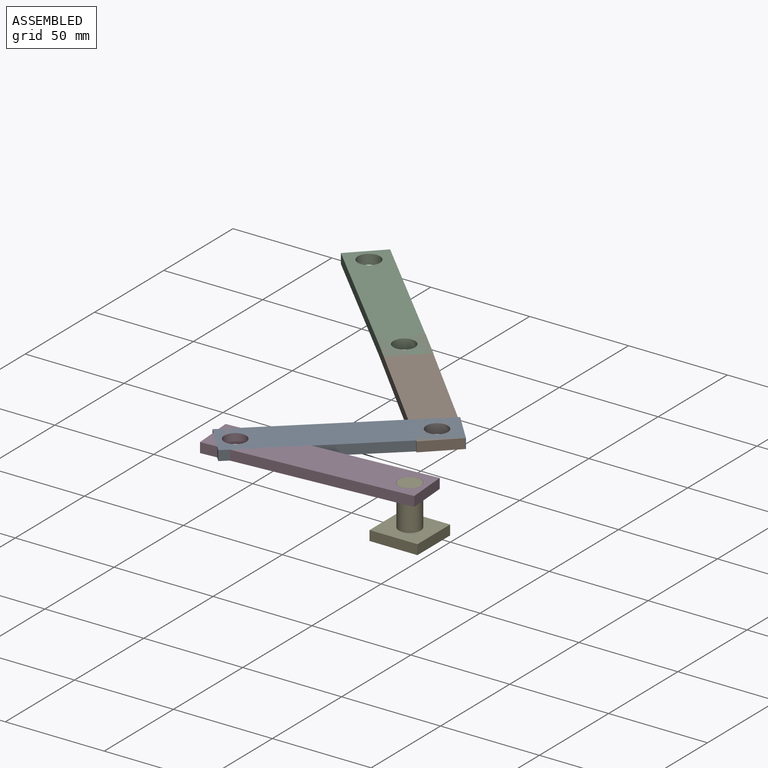
[diagram: assembled view]
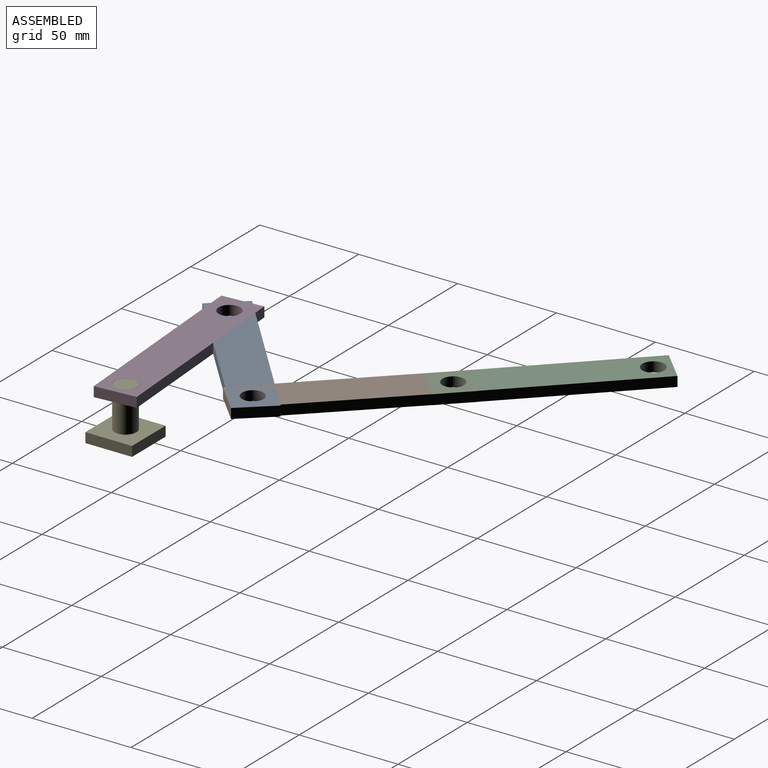
[diagram: assembled view, second angle]
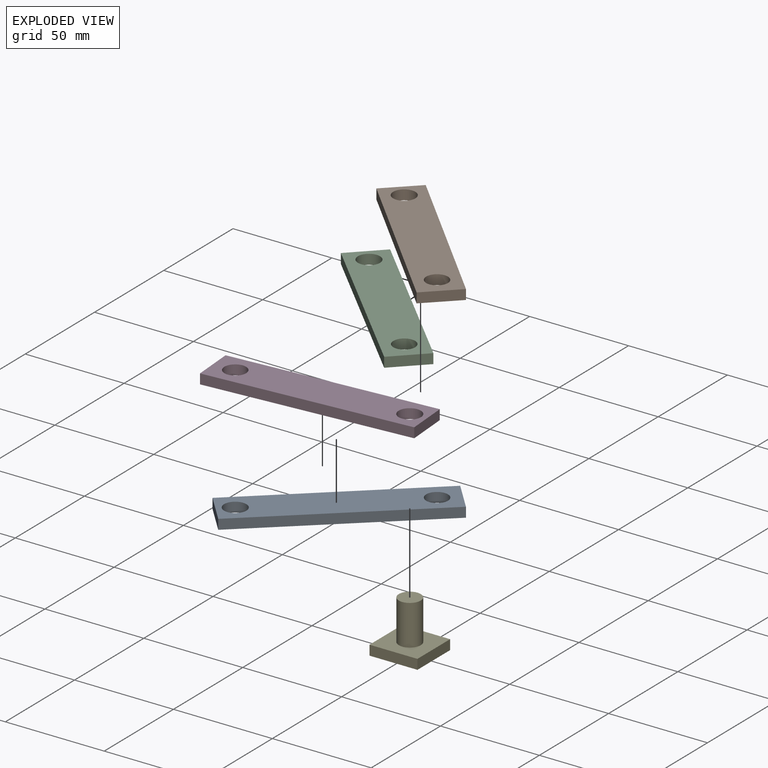
[diagram: exploded view]
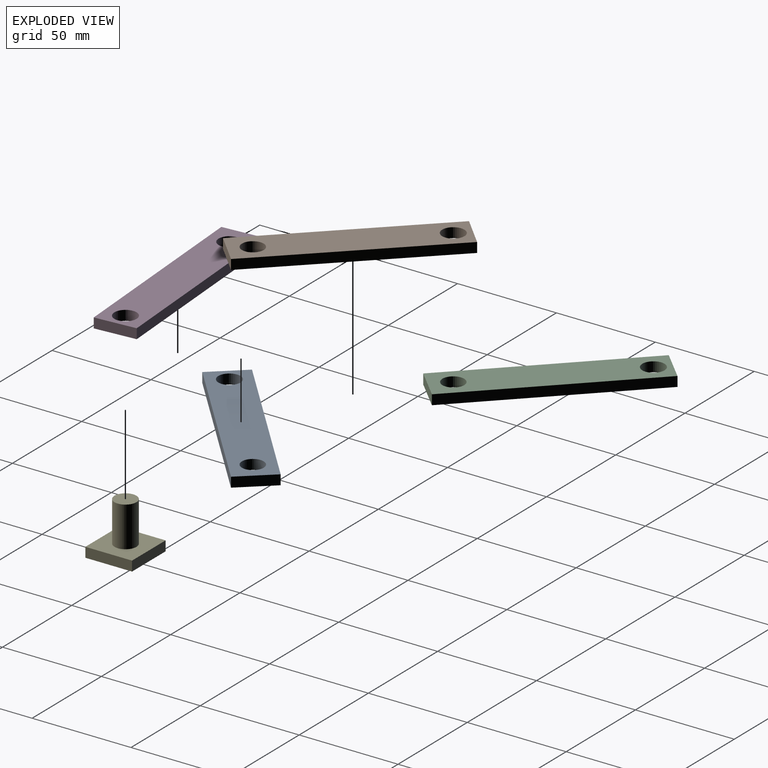
[diagram: exploded view, second angle]
ASSEMBLY  parts=5 mates=4
PART A: 8 faces, bbox 20.7x103.3x5 mm
  f0: plane 20.72x5mm, normal (0,1,0), area 103.6mm2, adj f1,f5,f6,f7
  f1: plane 103.28x5mm, normal (-1,0,0), area 516.4mm2, adj f0,f2,f6,f7
  f2: plane 20.72x5mm, normal (0,-1,0), area 103.6mm2, adj f1,f5,f6,f7
  f3: cylinder r=5.5mm len=10.99mm, axis (0,0,-1), area 172.7mm2, adj f6,f7
  f4: cylinder r=5.61mm len=11.23mm, axis (0,0,-1), area 176.4mm2, adj f6,f7
  f5: plane 103.28x5mm, normal (1,0,0), area 516.4mm2, adj f0,f2,f6,f7
  f6: plane 103.28x20.72mm, normal (0,0,1), area 1946mm2, adj f0,f1,f2,f3,f4,f5
  f7: plane 103.28x20.72mm, normal (0,0,-1), area 1946mm2, adj f0,f1,f2,f3,f4,f5
PART B: same geometry as A
PART C: same geometry as A
PART D: same geometry as A
PART E: 8 faces, bbox 24.2x25.4x23.6 mm
  f0: plane 24.23x5mm, normal (0,0,1), area 121.1mm2, adj f1,f3,f4,f5
  f1: plane 23.59x5mm, normal (-1,0,0), area 117.9mm2, adj f0,f2,f4,f5
  f2: plane 24.23x5mm, normal (0,0,-1), area 121.1mm2, adj f1,f3,f4,f5
  f3: plane 23.59x5mm, normal (1,0,0), area 117.9mm2, adj f0,f2,f4,f5
  f4: plane 24.23x23.59mm, normal (0,-1,0), area 474.5mm2, adj f0,f1,f2,f3,f6
  f5: plane 24.23x23.59mm, normal (0,1,0), area 571.5mm2, adj f0,f1,f2,f3
  f6: cylinder r=5.56mm len=20.4mm, axis (0,1,0), area 712.2mm2, adj f4,f7
  f7: plane 11.11x11.11mm, normal (0,-1,0), area 97mm2, adj f6
PLACE A rot(axis=(0,0,-1),48.4deg) t=(23.91,-100.8,0)mm
PLACE B rot(axis=(0,0,-1),135.7deg) t=(-13.01,-49.49,0)mm
PLACE C rot(axis=(0,0,-1),135deg) t=(-71.85,10.18,0)mm
PLACE D rot(axis=(0,0,1),94.2deg) t=(3.42,-81.03,0)mm
PLACE E rot(axis=(-1,0,0),90deg) t=(96.21,-141.02,-20.4)mm
MATE cylindrical A.f4 <-> D.f3  axis (0,0,1) through (-30.59,-111.67,5)mm
MATE cylindrical E.f6 <-> D.f4  axis (0,0,1) through (53.33,-105.48,5)mm
MATE cylindrical C.f3 <-> B.f4  axis (0,0,1) through (-26.43,4.43,5)mm
MATE cylindrical B.f3 <-> A.f3  axis (0,0,1) through (32.34,-55.8,5)mm
